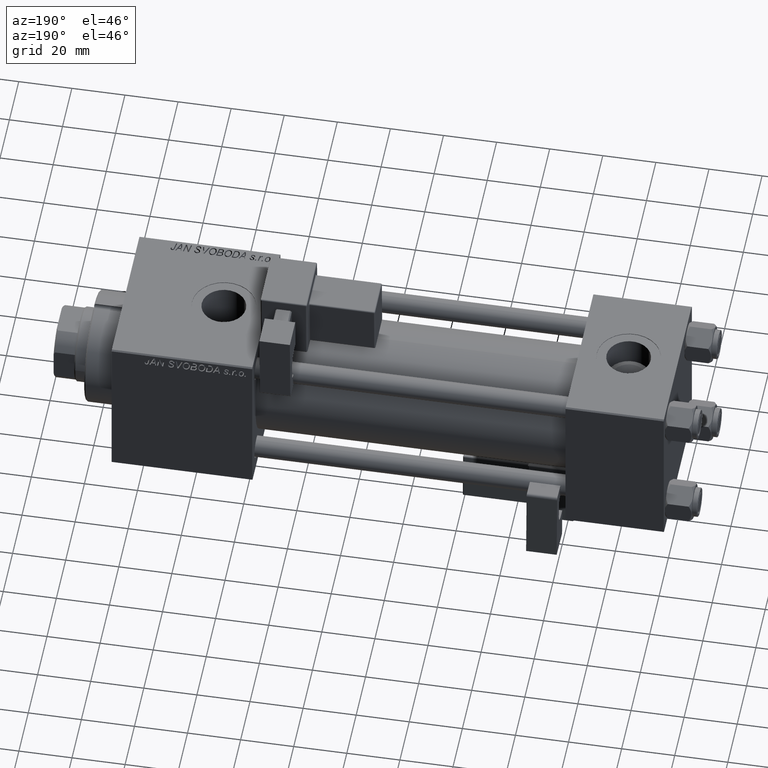
[diagram: clean part render]
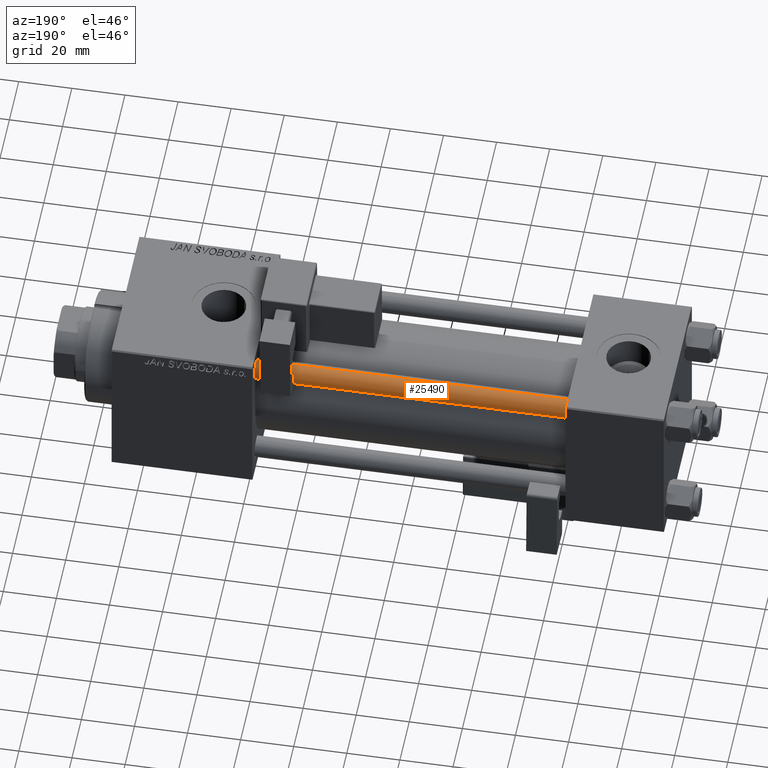
[diagram: same view with one face highlighted and labeled with its STEP entity id]
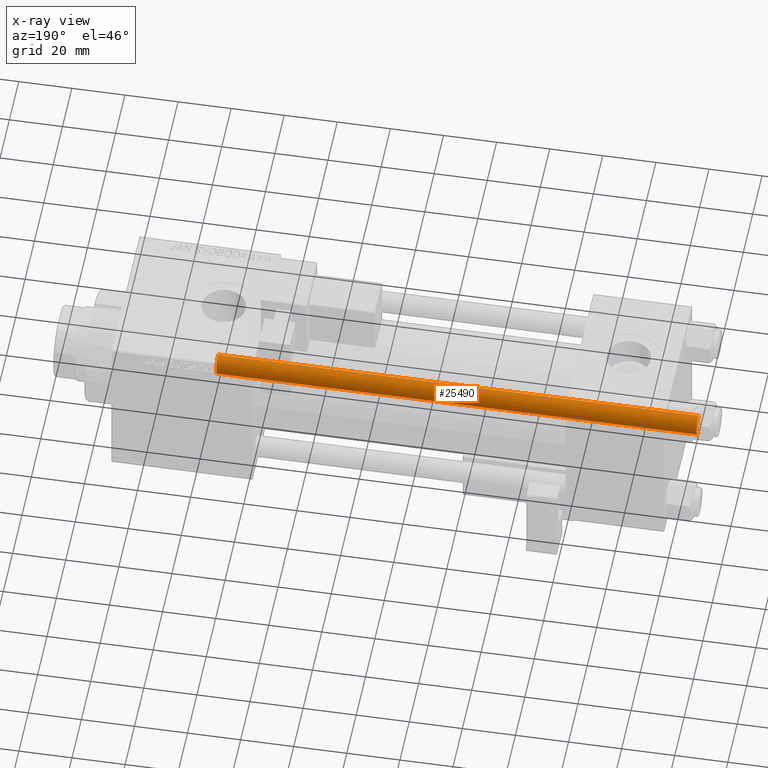
[diagram: x-ray of the same camera — body ghosted, the highlighted face saturated]
A machine part, auxiliary view. The second image highlights one B-rep face of the part: STEP entity #25490.
The next image is the same camera in x-ray: the body ghosted, the highlighted face saturated — about 0% of this face is hidden behind the body in this view.
In plain terms, the highlighted cylindrical surface (edge-blend (fillet) strip) has radius 4 mm, axis along (-1, 0, 0).
Its self-contained STEP definition (entity closure, byte-faithful):
#1394 = DIRECTION ( 'NONE',  ( -0.000000000000000000, -0.000000000000000000, 1.000000000000000000 ) ) ;
#2606 = DIRECTION ( 'NONE',  ( 0.000000000000000000, 0.000000000000000000, -1.000000000000000000 ) ) ;
#2662 = DIRECTION ( 'NONE',  ( -0.000000000000000000, -0.000000000000000000, -1.000000000000000000 ) ) ;
#3256 = CARTESIAN_POINT ( 'NONE',  ( 0.000000000000000000, 0.000000000000000000, 182.0000000000000000 ) ) ;
#3582 = CARTESIAN_POINT ( 'NONE',  ( 4.000000000000000000, 4.898587196589412829E-16, 0.4999999999999726885 ) ) ;
#4304 = VERTEX_POINT ( 'NONE', #50448 ) ;
#4339 = ORIENTED_EDGE ( 'NONE', *, *, #47653, .T. ) ;
#4978 = LINE ( 'NONE', #8260, #37911 ) ;
#7605 = DIRECTION ( 'NONE',  ( -0.000000000000000000, -0.000000000000000000, -1.000000000000000000 ) ) ;
#8246 = EDGE_CURVE ( 'NONE', #16383, #13153, #4978, .T. ) ;
#8260 = CARTESIAN_POINT ( 'NONE',  ( -4.000000000000000000, 0.000000000000000000, 182.0000000000000000 ) ) ;
#9573 = CARTESIAN_POINT ( 'NONE',  ( 0.000000000000000000, 0.000000000000000000, 0.4999999999999726885 ) ) ;
#10559 = LINE ( 'NONE', #44270, #40975 ) ;
#13153 = VERTEX_POINT ( 'NONE', #20304 ) ;
#13987 = AXIS2_PLACEMENT_3D ( 'NONE', #9573, #1394, #42204 ) ;
#16285 = FACE_OUTER_BOUND ( 'NONE', #31412, .T. ) ;
#16383 = VERTEX_POINT ( 'NONE', #27336 ) ;
#16559 = DIRECTION ( 'NONE',  ( -1.000000000000000000, 0.000000000000000000, 0.000000000000000000 ) ) ;
#17314 = EDGE_CURVE ( 'NONE', #16383, #4304, #51248, .T. ) ;
#19237 = ORIENTED_EDGE ( 'NONE', *, *, #17314, .T. ) ;
#20304 = CARTESIAN_POINT ( 'NONE',  ( -4.000000000000000000, 0.000000000000000000, 0.4999999999999726885 ) ) ;
#23797 = CARTESIAN_POINT ( 'NONE',  ( 0.000000000000000000, 0.000000000000000000, 181.5000000000000284 ) ) ;
#24341 = VERTEX_POINT ( 'NONE', #3582 ) ;
#24456 = CYLINDRICAL_SURFACE ( 'NONE', #47127, 4.000000000000000000 ) ;
#25490 = ADVANCED_FACE ( 'NONE', ( #16285 ), #24456, .T. ) ;
#26606 = ORIENTED_EDGE ( 'NONE', *, *, #8246, .F. ) ;
#27336 = CARTESIAN_POINT ( 'NONE',  ( -4.000000000000000000, 0.000000000000000000, 181.5000000000000284 ) ) ;
#31412 = EDGE_LOOP ( 'NONE', ( #19237, #45941, #4339, #26606 ) ) ;
#37352 = DIRECTION ( 'NONE',  ( -0.000000000000000000, -0.000000000000000000, -1.000000000000000000 ) ) ;
#37402 = AXIS2_PLACEMENT_3D ( 'NONE', #23797, #2606, #52107 ) ;
#37911 = VECTOR ( 'NONE', #37352, 1000.000000000000000 ) ;
#40975 = VECTOR ( 'NONE', #2662, 1000.000000000000000 ) ;
#42204 = DIRECTION ( 'NONE',  ( 1.000000000000000000, 0.000000000000000000, 0.000000000000000000 ) ) ;
#44270 = CARTESIAN_POINT ( 'NONE',  ( 4.000000000000000000, 4.898587196589412829E-16, 182.0000000000000000 ) ) ;
#45941 = ORIENTED_EDGE ( 'NONE', *, *, #52431, .T. ) ;
#46119 = CIRCLE ( 'NONE', #13987, 4.000000000000000000 ) ;
#47127 = AXIS2_PLACEMENT_3D ( 'NONE', #3256, #7605, #16559 ) ;
#47653 = EDGE_CURVE ( 'NONE', #24341, #13153, #46119, .T. ) ;
#50448 = CARTESIAN_POINT ( 'NONE',  ( 4.000000000000000000, 4.898587196589412829E-16, 181.5000000000000284 ) ) ;
#51248 = CIRCLE ( 'NONE', #37402, 4.000000000000000000 ) ;
#52107 = DIRECTION ( 'NONE',  ( 1.000000000000000000, 0.000000000000000000, 0.000000000000000000 ) ) ;
#52431 = EDGE_CURVE ( 'NONE', #4304, #24341, #10559, .T. ) ;